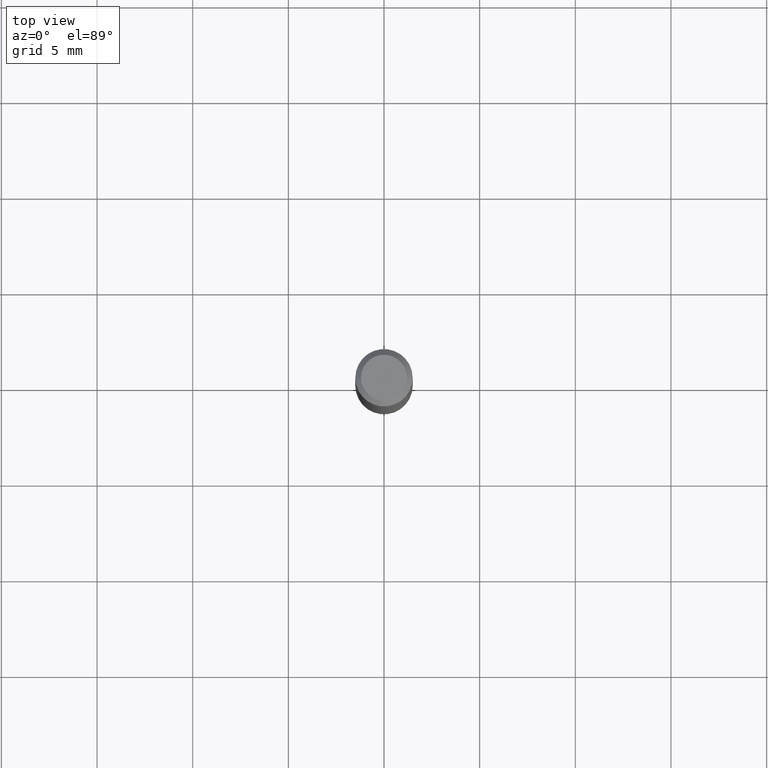
[diagram: clean part render]
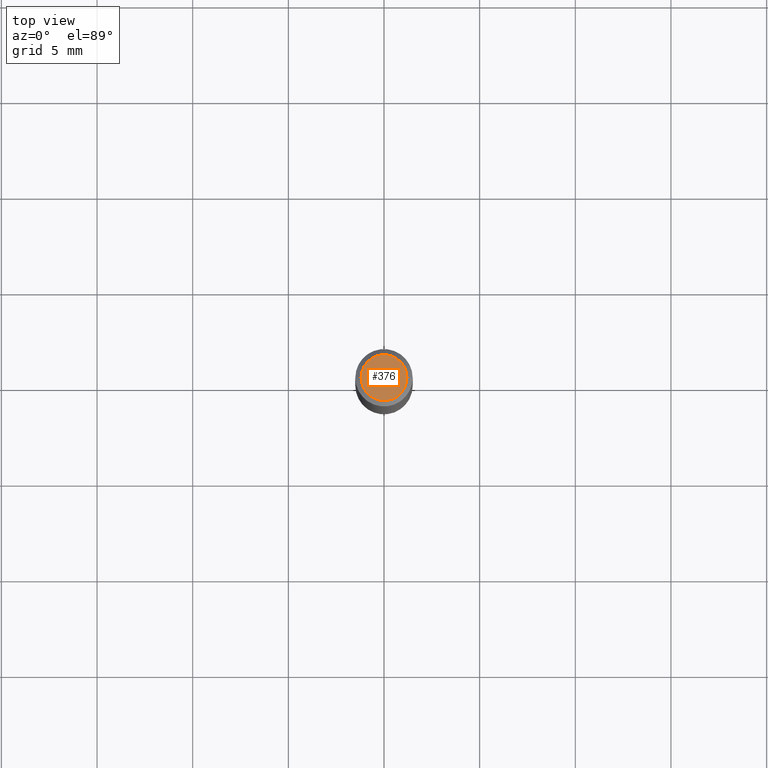
[diagram: same view with one face highlighted and labeled with its STEP entity id]
A machine part, top view. The second image highlights one B-rep face of the part: STEP entity #376.
In plain terms, the highlighted planar face has unit normal (0, -0, -1).
Its self-contained STEP definition (entity closure, byte-faithful):
#11 = CIRCLE ( 'NONE', #280, 0.04724000000000000421 ) ;
#84 = AXIS2_PLACEMENT_3D ( 'NONE', #291, #99, #109 ) ;
#87 = CARTESIAN_POINT ( 'NONE',  ( 4.132873053354867254E-48, -5.900647395337818946E-34, -1.690012582823346072E-19 ) ) ;
#99 = DIRECTION ( 'NONE',  ( -2.445468806185136597E-29, 3.491481338843145583E-15, 1.000000000000000000 ) ) ;
#109 = DIRECTION ( 'NONE',  ( 1.000000000000000000, -6.982962677686266711E-15, 4.876185090822587894E-29 ) ) ;
#116 = AXIS2_PLACEMENT_3D ( 'NONE', #87, #456, #336 ) ;
#125 = CARTESIAN_POINT ( 'NONE',  ( 0.04724000000000000421, -3.852183633974369838E-16, -3.380025165621689721E-19 ) ) ;
#150 = CARTESIAN_POINT ( 'NONE',  ( 8.265746106709734507E-48, -1.180129479067563789E-33, -3.380025165646692144E-19 ) ) ;
#208 = EDGE_LOOP ( 'NONE', ( #411, #427 ) ) ;
#244 = CARTESIAN_POINT ( 'NONE',  ( -0.04724000000000000421, 3.504923541997677355E-16, -3.380025165670481712E-19 ) ) ;
#280 = AXIS2_PLACEMENT_3D ( 'NONE', #150, #438, #355 ) ;
#291 = CARTESIAN_POINT ( 'NONE',  ( 8.265746106709734507E-48, -1.180129479067563789E-33, -3.380025165646692144E-19 ) ) ;
#307 = PLANE ( 'NONE',  #116 ) ;
#336 = DIRECTION ( 'NONE',  ( -1.000000000000000000, 6.982962677686265922E-15, -4.876176775795935793E-29 ) ) ;
#354 = VERTEX_POINT ( 'NONE', #244 ) ;
#355 = DIRECTION ( 'NONE',  ( 1.000000000000000000, -6.982962677686266711E-15, 4.876185090822587894E-29 ) ) ;
#365 = VERTEX_POINT ( 'NONE', #125 ) ;
#376 = ADVANCED_FACE ( 'NONE', ( #415 ), #307, .F. ) ;
#411 = ORIENTED_EDGE ( 'NONE', *, *, #416, .T. ) ;
#415 = FACE_OUTER_BOUND ( 'NONE', #208, .T. ) ;
#416 = EDGE_CURVE ( 'NONE', #354, #365, #11, .T. ) ;
#423 = EDGE_CURVE ( 'NONE', #365, #354, #487, .T. ) ;
#427 = ORIENTED_EDGE ( 'NONE', *, *, #423, .T. ) ;
#438 = DIRECTION ( 'NONE',  ( -2.445468806185136597E-29, 3.491481338843145583E-15, 1.000000000000000000 ) ) ;
#456 = DIRECTION ( 'NONE',  ( 2.438088387897960049E-29, -3.491481338843145188E-15, -1.000000000000000000 ) ) ;
#487 = CIRCLE ( 'NONE', #84, 0.04724000000000000421 ) ;